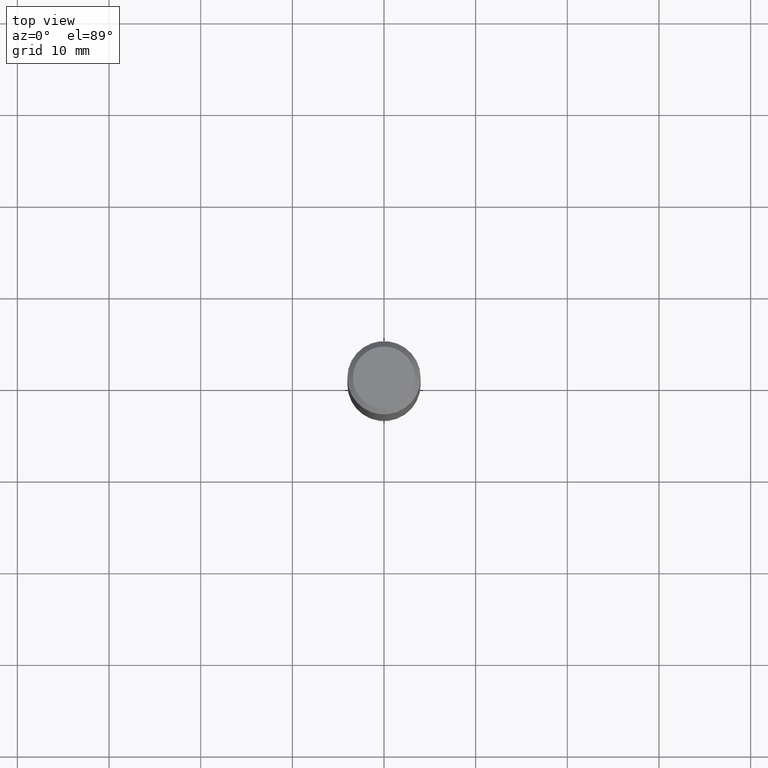
[diagram: clean part render]
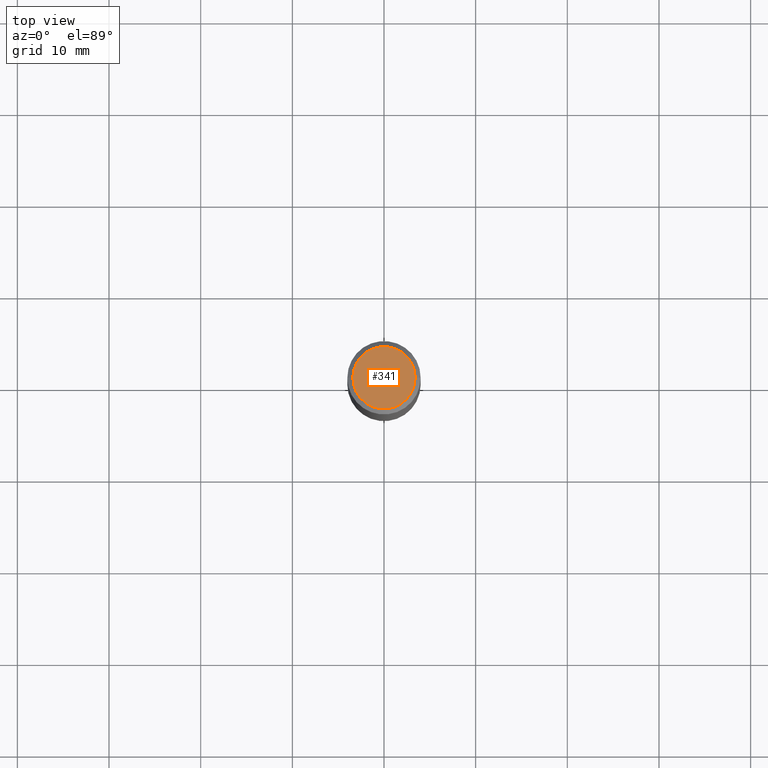
[diagram: same view with one face highlighted and labeled with its STEP entity id]
A machine part, top view. The second image highlights one B-rep face of the part: STEP entity #341.
In plain terms, the highlighted planar face has unit normal (0, -0, -1).
Its self-contained STEP definition (entity closure, byte-faithful):
#22 = CARTESIAN_POINT ( 'NONE',  ( -1.002970424325032604E-46, 1.431975951230895391E-32, 4.101342130344482109E-18 ) ) ;
#47 = EDGE_LOOP ( 'NONE', ( #475, #305 ) ) ;
#61 = FACE_OUTER_BOUND ( 'NONE', #47, .T. ) ;
#130 = AXIS2_PLACEMENT_3D ( 'NONE', #22, #334, #476 ) ;
#137 = AXIS2_PLACEMENT_3D ( 'NONE', #179, #383, #324 ) ;
#143 = PLANE ( 'NONE',  #328 ) ;
#177 = CARTESIAN_POINT ( 'NONE',  ( -5.014852121625163022E-47, 7.159879756154476955E-33, 2.050671065172241055E-18 ) ) ;
#179 = CARTESIAN_POINT ( 'NONE',  ( -1.002970424325032604E-46, 1.431975951230895391E-32, 4.101342130344482109E-18 ) ) ;
#184 = VERTEX_POINT ( 'NONE', #439 ) ;
#216 = DIRECTION ( 'NONE',  ( 2.438088387897960049E-29, -3.491481338843145188E-15, -1.000000000000000000 ) ) ;
#218 = DIRECTION ( 'NONE',  ( -1.000000000000000000, 6.982962677686265922E-15, -4.876176775795935793E-29 ) ) ;
#236 = VERTEX_POINT ( 'NONE', #454 ) ;
#305 = ORIENTED_EDGE ( 'NONE', *, *, #369, .T. ) ;
#324 = DIRECTION ( 'NONE',  ( 1.000000000000000000, -6.982962677686266711E-15, 4.876170806578254279E-29 ) ) ;
#328 = AXIS2_PLACEMENT_3D ( 'NONE', #177, #216, #218 ) ;
#332 = EDGE_CURVE ( 'NONE', #236, #184, #477, .T. ) ;
#334 = DIRECTION ( 'NONE',  ( -2.445468806185136597E-29, 3.491481338843145583E-15, 1.000000000000000000 ) ) ;
#341 = ADVANCED_FACE ( 'NONE', ( #61 ), #143, .F. ) ;
#369 = EDGE_CURVE ( 'NONE', #184, #236, #451, .T. ) ;
#383 = DIRECTION ( 'NONE',  ( -2.445468806185136597E-29, 3.491481338843145583E-15, 1.000000000000000000 ) ) ;
#439 = CARTESIAN_POINT ( 'NONE',  ( 0.1338749999999999940, -1.040731925365424925E-15, 4.101342130351390035E-18 ) ) ;
#451 = CIRCLE ( 'NONE', #130, 0.1338749999999999940 ) ;
#454 = CARTESIAN_POINT ( 'NONE',  ( -0.1338749999999999940, 9.760872517903331886E-16, 4.101342130337800673E-18 ) ) ;
#475 = ORIENTED_EDGE ( 'NONE', *, *, #332, .T. ) ;
#476 = DIRECTION ( 'NONE',  ( 1.000000000000000000, -6.982962677686266711E-15, 4.876170806578254279E-29 ) ) ;
#477 = CIRCLE ( 'NONE', #137, 0.1338749999999999940 ) ;